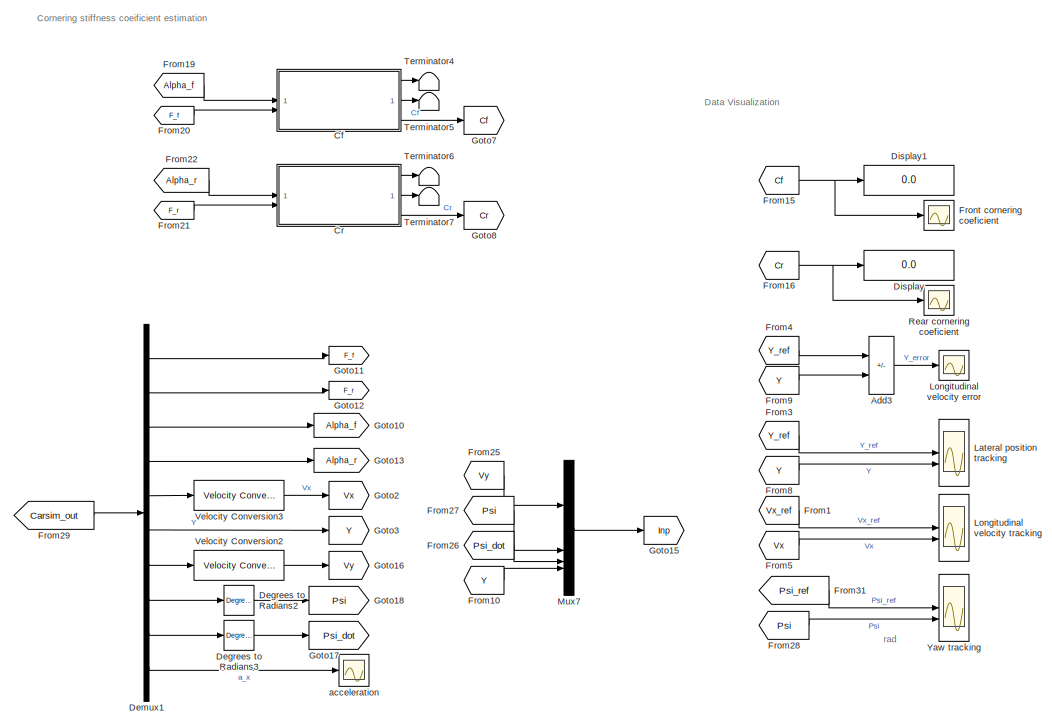
[diagram: root canvas - part 1/3, right side, full height]
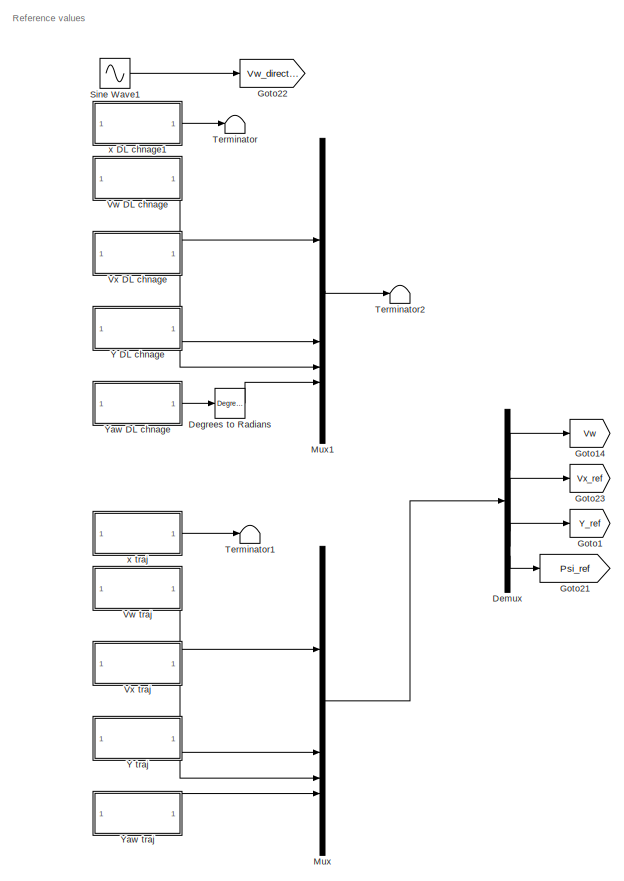
[diagram: root canvas - part 2/3, left side, full height]
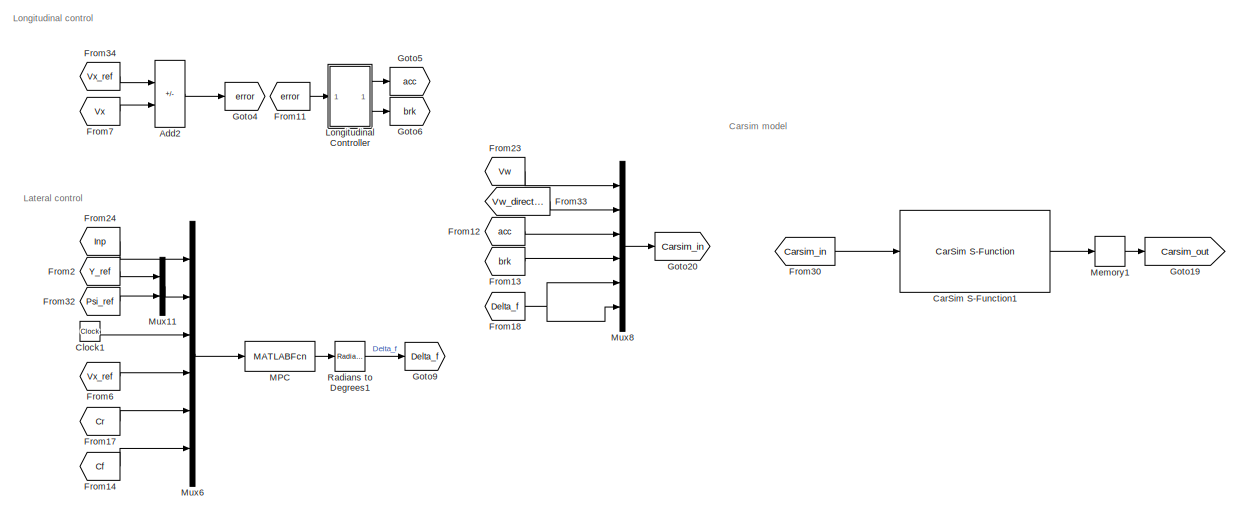
[diagram: root canvas - part 3/3, central region]
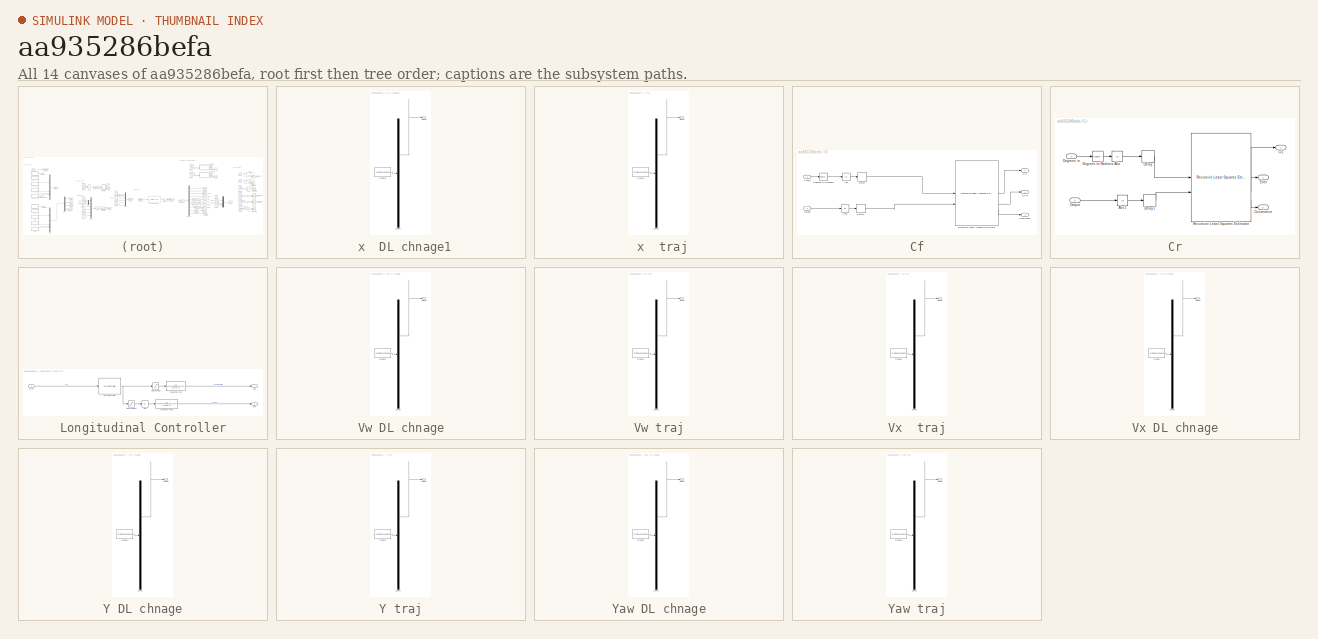
[diagram: thumbnail index - all 14 canvases of the model, root first then tree order]
MODEL slx_aa935286befa
KIND model
CONFIG AbsTol = 1e-6
CONFIG EnableMultiTasking = off
CONFIG FixedStep = 0.001
CONFIG MaxStep = auto
CONFIG MinStep = auto
CONFIG RelTol = 1e-3
CONFIG SampleTimeConstraint = Unconstrained
CONFIG SolverName = VariableStepAuto
CONFIG StartTime = 0
CONFIG StopTime = 84
BLOCK [SubSystem]  x  DL chnage1
  ClipboardFcn = sigbuilder_block('clipboard');
  CloseFcn = sigbuilder_block('close');
  Commented = on
  ContinueFcn = sigbuilder_block('continue');
  CopyFcn = sigbuilder_block('copy');
  DeleteFcn = sigbuilder_block('delete');
  LoadFcn = sigbuilder_block('load');
  MaskHideContents = on
  ModelCloseFcn = sigbuilder_block('modelClose');
  NameChangeFcn = sigbuilder_block('namechange');
  OpenFcn = sigbuilder_block('open',[474 22.5 1440 689.25 ]);
  PauseFcn = sigbuilder_block('pause');
  PreSaveFcn = sigbuilder_block('preSave');
  StartFcn = sigbuilder_block('start');
  StopFcn = sigbuilder_block('stop');
  Tag = STV Subsys
BLOCK [Demux]  x  DL chnage1/Demux
  DisplayOption = none
  Outputs = 1
  Tag = STV Demux
BLOCK [FromWorkspace]  x  DL chnage1/FromWs
  Tag = STV FromWs
  VariableName = tuvar
BLOCK [Outport]  x  DL chnage1/Signal 1
  Tag = STV Outport
BLOCK [SubSystem]  x  traj
  ClipboardFcn = sigbuilder_block('clipboard');
  CloseFcn = sigbuilder_block('close');
  Commented = on
  ContinueFcn = sigbuilder_block('continue');
  CopyFcn = sigbuilder_block('copy');
  DeleteFcn = sigbuilder_block('delete');
  LoadFcn = sigbuilder_block('load');
  MaskHideContents = on
  ModelCloseFcn = sigbuilder_block('modelClose');
  NameChangeFcn = sigbuilder_block('namechange');
  OpenFcn = sigbuilder_block('open',[65.25 51.75 1440 651.75 ]);
  PauseFcn = sigbuilder_block('pause');
  PreSaveFcn = sigbuilder_block('preSave');
  StartFcn = sigbuilder_block('start');
  StopFcn = sigbuilder_block('stop');
  Tag = STV Subsys
BLOCK [Demux]  x  traj/Demux
  DisplayOption = none
  Outputs = 1
  Tag = STV Demux
BLOCK [FromWorkspace]  x  traj/FromWs
  Tag = STV FromWs
  VariableName = tuvar
BLOCK [Outport]  x  traj/Signal 1
  Tag = STV Outport
BLOCK [Sum] Add2
  IconShape = rectangular
  Inputs = +-
BLOCK [Sum] Add3
  IconShape = rectangular
  Inputs = +-
BLOCK [Reference] CarSim S-Function1  REF=Solver_SF/CarSim S-Function
  AttributesFormatString = Vehicle Code: %<VehicleCode>
  Priority = 1
  SourceBlock = Solver_SF/CarSim S-Function
  SourceProductName = CarSim S-Function
  SourceType = Vehicle math model library
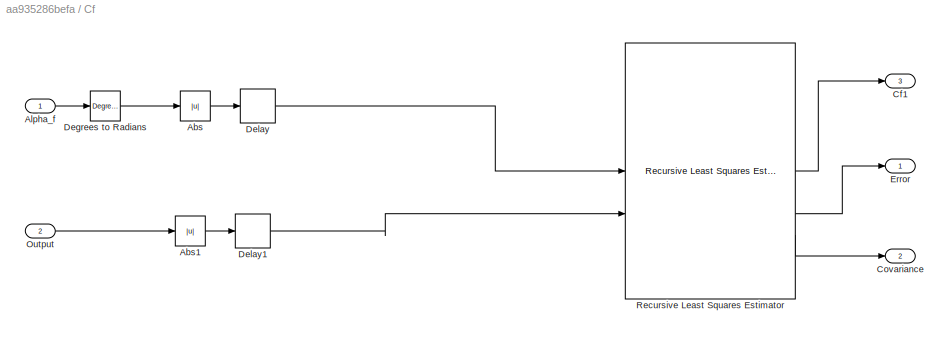
BLOCK [SubSystem] Cf
BLOCK [Abs] Cf/Abs
  SaturateOnIntegerOverflow = off
BLOCK [Abs] Cf/Abs1
  SaturateOnIntegerOverflow = off
BLOCK [Inport] Cf/Alpha_f
BLOCK [Outport] Cf/Cf1
  Port = 3
BLOCK [Outport] Cf/Covariance
  Port = 2
BLOCK [Reference] Cf/Degrees to Radians  REF=simulink_extras/Transformations/Degrees to
Radians
  SourceBlock = simulink_extras/Transformations/Degrees to\nRadians
  SourceType = DegreesToRadians
BLOCK [Delay] Cf/Delay
  DelayLength = 1
  InputPortMap = u0
BLOCK [Delay] Cf/Delay1
  DelayLength = 1
  InputPortMap = u0
BLOCK [Outport] Cf/Error
BLOCK [Inport] Cf/Output
  Port = 2
BLOCK [Reference] Cf/Recursive Least Squares Estimator  REF=ctrlSharedLib/Recursive Least Squares Estimator
  SourceBlock = ctrlSharedLib/Recursive Least Squares Estimator
  SourceType = idEstimatorsRLS
BLOCK [Clock] Clock1
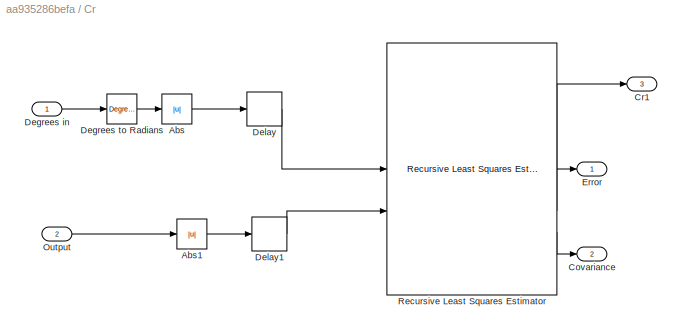
BLOCK [SubSystem] Cr
BLOCK [Abs] Cr/Abs
  SaturateOnIntegerOverflow = off
BLOCK [Abs] Cr/Abs1
  SaturateOnIntegerOverflow = off
BLOCK [Outport] Cr/Covariance
  Port = 2
BLOCK [Outport] Cr/Cr1
  Port = 3
BLOCK [Inport] Cr/Degrees in
BLOCK [Reference] Cr/Degrees to Radians  REF=simulink_extras/Transformations/Degrees to
Radians
  SourceBlock = simulink_extras/Transformations/Degrees to\nRadians
  SourceType = DegreesToRadians
BLOCK [Delay] Cr/Delay
  DelayLength = 1
  InputPortMap = u0
BLOCK [Delay] Cr/Delay1
  DelayLength = 1
  InputPortMap = u0
BLOCK [Outport] Cr/Error
BLOCK [Inport] Cr/Output
  Port = 2
BLOCK [Reference] Cr/Recursive Least Squares Estimator  REF=ctrlSharedLib/Recursive Least Squares Estimator
  SourceBlock = ctrlSharedLib/Recursive Least Squares Estimator
  SourceType = idEstimatorsRLS
BLOCK [Reference] Degrees to Radians  REF=simulink_extras/Transformations/Degrees to
Radians
  Commented = on
  SourceBlock = simulink_extras/Transformations/Degrees to\nRadians
  SourceType = DegreesToRadians
BLOCK [Reference] Degrees to Radians2  REF=simulink_extras/Transformations/Degrees to
Radians
  SourceBlock = simulink_extras/Transformations/Degrees to\nRadians
  SourceType = DegreesToRadians
BLOCK [Reference] Degrees to Radians3  REF=simulink_extras/Transformations/Degrees to
Radians
  SourceBlock = simulink_extras/Transformations/Degrees to\nRadians
  SourceType = DegreesToRadians
BLOCK [Demux] Demux
BLOCK [Demux] Demux1
  Outputs = 10
BLOCK [Display] Display
  Decimation = 1
BLOCK [Display] Display1
  Decimation = 1
BLOCK [From] From1
  GotoTag = Vx_ref
BLOCK [From] From10
  GotoTag = Y
BLOCK [From] From11
  GotoTag = error
BLOCK [From] From12
  GotoTag = acc
BLOCK [From] From13
  GotoTag = brk
BLOCK [From] From14
  GotoTag = Cf
BLOCK [From] From15
  CopyFcn = Lib_CopyFcn(gcb);
  Description = FromInternal
  GotoTag = Cf
  PreDeleteFcn = Lib_PreDeleteFcn(gcb);
  Tag = Controls_Lib
  UserDataPersistent = on
BLOCK [From] From16
  GotoTag = Cr
BLOCK [From] From17
  GotoTag = Cr
BLOCK [From] From18
  GotoTag = Delta_f
BLOCK [From] From19
  GotoTag = Alpha_f
BLOCK [From] From2
  GotoTag = Y_ref
BLOCK [From] From20
  GotoTag = F_f
BLOCK [From] From21
  CopyFcn = Lib_CopyFcn(gcb);
  Description = FromInternal
  GotoTag = F_r
  PreDeleteFcn = Lib_PreDeleteFcn(gcb);
  Tag = Controls_Lib
  UserDataPersistent = on
BLOCK [From] From22
  CopyFcn = Lib_CopyFcn(gcb);
  Description = FromInternal
  GotoTag = Alpha_r
  PreDeleteFcn = Lib_PreDeleteFcn(gcb);
  Tag = Controls_Lib
  UserDataPersistent = on
BLOCK [From] From23
  GotoTag = Vw
BLOCK [From] From24
  GotoTag = Inp
BLOCK [From] From25
  CopyFcn = Lib_CopyFcn(gcb);
  Description = FromInternal
  GotoTag = Vy
  PreDeleteFcn = Lib_PreDeleteFcn(gcb);
  Tag = Controls_Lib
  UserDataPersistent = on
BLOCK [From] From26
  GotoTag = Psi_dot
BLOCK [From] From27
  GotoTag = Psi
BLOCK [From] From28
  GotoTag = Psi
BLOCK [From] From29
  GotoTag = Carsim_out
BLOCK [From] From3
  GotoTag = Y_ref
BLOCK [From] From30
  GotoTag = Carsim_in
BLOCK [From] From31
  GotoTag = Psi_ref
BLOCK [From] From32
  GotoTag = Psi_ref
BLOCK [From] From33
  GotoTag = Vw_direction
BLOCK [From] From34
  GotoTag = Vx_ref
BLOCK [From] From4
  GotoTag = Y_ref
BLOCK [From] From5
  GotoTag = Vx
BLOCK [From] From6
  GotoTag = Vx_ref
BLOCK [From] From7
  GotoTag = Vx
BLOCK [From] From8
  GotoTag = Y
BLOCK [From] From9
  GotoTag = Y
BLOCK [Scope] Front cornering coeficient
  Floating = off
  NameLocation = right
  NumInputPorts = 1
  ScopeSpecificationString = Simulink.scopes.TimeScopeBlockCfg('CurrentConfiguration', extmgr.ConfigurationSet(extmgr.Configuration('Core','General UI',true),extmgr.Configuration('Core','Source UI',true),extmgr.Configuration('Sources','WiredSimulink',true,'DataLoggingSaveFormat','Array','DataLoggingDecimation','10','DataLoggingDecimateData',true,'DataLoggingVariableName','ScopeData1'),extmgr.Configuration('Visuals','Time Doma...<+1821ch>
BLOCK [Goto] Goto1
  CopyFcn = Lib_CopyFcn(gcb);
  Description = GotoInternal
  GotoTag = Y_ref
  PreDeleteFcn = Lib_PreDeleteFcn(gcb);
  Tag = Controls_Lib
  UserDataPersistent = on
BLOCK [Goto] Goto10
  CopyFcn = Lib_CopyFcn(gcb);
  Description = GotoInternal
  GotoTag = Alpha_f
  PreDeleteFcn = Lib_PreDeleteFcn(gcb);
  Tag = Controls_Lib
  UserDataPersistent = on
BLOCK [Goto] Goto11
  CopyFcn = Lib_CopyFcn(gcb);
  Description = GotoInternal
  GotoTag = F_f
  PreDeleteFcn = Lib_PreDeleteFcn(gcb);
  Tag = Controls_Lib
  UserDataPersistent = on
BLOCK [Goto] Goto12
  CopyFcn = Lib_CopyFcn(gcb);
  Description = GotoInternal
  GotoTag = F_r
  PreDeleteFcn = Lib_PreDeleteFcn(gcb);
  Tag = Controls_Lib
  UserDataPersistent = on
BLOCK [Goto] Goto13
  CopyFcn = Lib_CopyFcn(gcb);
  Description = GotoInternal
  GotoTag = Alpha_r
  PreDeleteFcn = Lib_PreDeleteFcn(gcb);
  Tag = Controls_Lib
  UserDataPersistent = on
BLOCK [Goto] Goto14
  CopyFcn = Lib_CopyFcn(gcb);
  Description = GotoInternal
  GotoTag = Vw
  PreDeleteFcn = Lib_PreDeleteFcn(gcb);
  Tag = Controls_Lib
  UserDataPersistent = on
BLOCK [Goto] Goto15
  CopyFcn = Lib_CopyFcn(gcb);
  Description = GotoInternal
  GotoTag = Inp
  PreDeleteFcn = Lib_PreDeleteFcn(gcb);
  Tag = Controls_Lib
  UserDataPersistent = on
BLOCK [Goto] Goto16
  CopyFcn = Lib_CopyFcn(gcb);
  Description = GotoInternal
  GotoTag = Vy
  PreDeleteFcn = Lib_PreDeleteFcn(gcb);
  Tag = Controls_Lib
  UserDataPersistent = on
BLOCK [Goto] Goto17
  CopyFcn = Lib_CopyFcn(gcb);
  Description = GotoInternal
  GotoTag = Psi_dot
  PreDeleteFcn = Lib_PreDeleteFcn(gcb);
  Tag = Controls_Lib
  UserDataPersistent = on
BLOCK [Goto] Goto18
  CopyFcn = Lib_CopyFcn(gcb);
  Description = GotoInternal
  GotoTag = Psi
  PreDeleteFcn = Lib_PreDeleteFcn(gcb);
  Tag = Controls_Lib
  UserDataPersistent = on
BLOCK [Goto] Goto19
  CopyFcn = Lib_CopyFcn(gcb);
  Description = GotoInternal
  GotoTag = Carsim_out
  PreDeleteFcn = Lib_PreDeleteFcn(gcb);
  Tag = Controls_Lib
  UserDataPersistent = on
BLOCK [Goto] Goto2
  CopyFcn = Lib_CopyFcn(gcb);
  Description = GotoInternal
  GotoTag = Vx
  PreDeleteFcn = Lib_PreDeleteFcn(gcb);
  Tag = Controls_Lib
  UserDataPersistent = on
BLOCK [Goto] Goto20
  CopyFcn = Lib_CopyFcn(gcb);
  Description = GotoInternal
  GotoTag = Carsim_in
  PreDeleteFcn = Lib_PreDeleteFcn(gcb);
  Tag = Controls_Lib
  UserDataPersistent = on
BLOCK [Goto] Goto21
  CopyFcn = Lib_CopyFcn(gcb);
  Description = GotoInternal
  GotoTag = Psi_ref
  PreDeleteFcn = Lib_PreDeleteFcn(gcb);
  Tag = Controls_Lib
  UserDataPersistent = on
BLOCK [Goto] Goto22
  CopyFcn = Lib_CopyFcn(gcb);
  Description = GotoInternal
  GotoTag = Vw_direction
  PreDeleteFcn = Lib_PreDeleteFcn(gcb);
  Tag = Controls_Lib
  UserDataPersistent = on
BLOCK [Goto] Goto23
  CopyFcn = Lib_CopyFcn(gcb);
  Description = GotoInternal
  GotoTag = Vx_ref
  PreDeleteFcn = Lib_PreDeleteFcn(gcb);
  Tag = Controls_Lib
  UserDataPersistent = on
BLOCK [Goto] Goto3
  CopyFcn = Lib_CopyFcn(gcb);
  Description = GotoInternal
  GotoTag = Y
  PreDeleteFcn = Lib_PreDeleteFcn(gcb);
  Tag = Controls_Lib
  UserDataPersistent = on
BLOCK [Goto] Goto4
  CopyFcn = Lib_CopyFcn(gcb);
  Description = GotoInternal
  GotoTag = error
  PreDeleteFcn = Lib_PreDeleteFcn(gcb);
  Tag = Controls_Lib
  UserDataPersistent = on
BLOCK [Goto] Goto5
  CopyFcn = Lib_CopyFcn(gcb);
  Description = GotoInternal
  GotoTag = acc
  PreDeleteFcn = Lib_PreDeleteFcn(gcb);
  Tag = Controls_Lib
  UserDataPersistent = on
BLOCK [Goto] Goto6
  CopyFcn = Lib_CopyFcn(gcb);
  Description = GotoInternal
  GotoTag = brk
  PreDeleteFcn = Lib_PreDeleteFcn(gcb);
  Tag = Controls_Lib
  UserDataPersistent = on
BLOCK [Goto] Goto7
  CopyFcn = Lib_CopyFcn(gcb);
  Description = GotoInternal
  GotoTag = Cf
  PreDeleteFcn = Lib_PreDeleteFcn(gcb);
  Tag = Controls_Lib
  UserDataPersistent = on
BLOCK [Goto] Goto8
  CopyFcn = Lib_CopyFcn(gcb);
  Description = GotoInternal
  GotoTag = Cr
  PreDeleteFcn = Lib_PreDeleteFcn(gcb);
  Tag = Controls_Lib
  UserDataPersistent = on
BLOCK [Goto] Goto9
  CopyFcn = Lib_CopyFcn(gcb);
  Description = GotoInternal
  GotoTag = Delta_f
  PreDeleteFcn = Lib_PreDeleteFcn(gcb);
  Tag = Controls_Lib
  UserDataPersistent = on
BLOCK [Scope] Lateral position tracking
  Floating = off
  NameLocation = right
  NumInputPorts = 2
  ScopeSpecificationString = Simulink.scopes.TimeScopeBlockCfg('CurrentConfiguration', extmgr.ConfigurationSet(extmgr.Configuration('Core','General UI',true),extmgr.Configuration('Core','Source UI',true),extmgr.Configuration('Sources','WiredSimulink',true,'DataLoggingSaveFormat','Array','DataLoggingDecimation','10','DataLoggingDecimateData',true,'DataLoggingVariableName','ScopeData2'),extmgr.Configuration('Visuals','Time Doma...<+1825ch>
BLOCK [SubSystem] Longitudinal Controller
BLOCK [Abs] Longitudinal Controller/Abs
  SaturateOnIntegerOverflow = off
BLOCK [Reference] Longitudinal Controller/PID Controller  REF=slpidlib/PID Controller
  SourceBlock = slpidlib/PID Controller
  SourceType = PID 1dof
BLOCK [Saturate] Longitudinal Controller/Saturation
  LowerLimit = 0
  UpperLimit = 1
BLOCK [Saturate] Longitudinal Controller/Saturation1
  LowerLimit = -5
  UpperLimit = 0
BLOCK [TransferFcn] Longitudinal Controller/Transfer Fcn
  Denominator = [0.75 1]
BLOCK [TransferFcn] Longitudinal Controller/Transfer Fcn1
  Denominator = [0.45 1]
BLOCK [Outport] Longitudinal Controller/acc
BLOCK [Outport] Longitudinal Controller/brk
  Port = 2
BLOCK [Inport] Longitudinal Controller/error
BLOCK [Scope] Longitudinal velocity error
  Floating = off
  NameLocation = right
  NumInputPorts = 1
  ScopeSpecificationString = Simulink.scopes.TimeScopeBlockCfg('CurrentConfiguration', extmgr.ConfigurationSet(extmgr.Configuration('Core','General UI',true),extmgr.Configuration('Core','Source UI',true),extmgr.Configuration('Sources','WiredSimulink',true,'DataLoggingSaveFormat','Array','DataLoggingDecimation','10','DataLoggingDecimateData',true,'DataLoggingVariableName','ScopeData1'),extmgr.Configuration('Visuals','Time Doma...<+1821ch>
BLOCK [Scope] Longitudinal velocity tracking
  Floating = off
  NameLocation = right
  NumInputPorts = 2
  ScopeSpecificationString = Simulink.scopes.TimeScopeBlockCfg('CurrentConfiguration', extmgr.ConfigurationSet(extmgr.Configuration('Core','General UI',true),extmgr.Configuration('Core','Source UI',true),extmgr.Configuration('Sources','WiredSimulink',true,'DataLoggingSaveFormat','Array','DataLoggingDecimation','10','DataLoggingDecimateData',true,'DataLoggingVariableName','ScopeData4'),extmgr.Configuration('Visuals','Time Doma...<+1799ch>
BLOCK [MATLABFcn] MPC
  MATLABFcn = MPCController(u(1:4),u(5:6),u(7),u(8),u(9),u(10))
  SampleTime = 0.1
BLOCK [Memory] Memory1
BLOCK [Mux] Mux
  DisplayOption = bar
BLOCK [Mux] Mux1
  Commented = on
  DisplayOption = bar
BLOCK [Mux] Mux11
  DisplayOption = bar
  Inputs = 2
BLOCK [Mux] Mux6
  DisplayOption = bar
  Inputs = 6
BLOCK [Mux] Mux7
  DisplayOption = bar
BLOCK [Mux] Mux8
  DisplayOption = bar
  Inputs = 6
BLOCK [Reference] Radians to Degrees1  REF=simulink_extras/Transformations/Radians
to Degrees
  SourceBlock = simulink_extras/Transformations/Radians\nto Degrees
  SourceType = RadiansToDegrees
BLOCK [Scope] Rear cornering coeficient
  Floating = off
  NameLocation = right
  NumInputPorts = 1
  ScopeSpecificationString = Simulink.scopes.TimeScopeBlockCfg('CurrentConfiguration', extmgr.ConfigurationSet(extmgr.Configuration('Core','General UI',true),extmgr.Configuration('Core','Source UI',true),extmgr.Configuration('Sources','WiredSimulink',true,'DataLoggingSaveFormat','Array','DataLoggingDecimation','10','DataLoggingDecimateData',true,'DataLoggingVariableName','ScopeData2'),extmgr.Configuration('Visuals','Time Doma...<+1821ch>
BLOCK [Sin] Sine Wave1
  Amplitude = 90
  Frequency = 0.45
  SampleTime = 0
BLOCK [Terminator] Terminator
  Commented = on
BLOCK [Terminator] Terminator1
  Commented = on
BLOCK [Terminator] Terminator2
  Commented = on
BLOCK [Terminator] Terminator4
  CopyFcn = Lib_CopyFcn(gcb);
  Description = Terminator
  PreDeleteFcn = Lib_PreDeleteFcn(gcb);
  Tag = Controls_Lib
  UserDataPersistent = on
BLOCK [Terminator] Terminator5
  CopyFcn = Lib_CopyFcn(gcb);
  Description = Terminator
  PreDeleteFcn = Lib_PreDeleteFcn(gcb);
  Tag = Controls_Lib
  UserDataPersistent = on
BLOCK [Terminator] Terminator6
  CopyFcn = Lib_CopyFcn(gcb);
  Description = Terminator
  PreDeleteFcn = Lib_PreDeleteFcn(gcb);
  Tag = Controls_Lib
  UserDataPersistent = on
BLOCK [Terminator] Terminator7
  CopyFcn = Lib_CopyFcn(gcb);
  Description = Terminator
  PreDeleteFcn = Lib_PreDeleteFcn(gcb);
  Tag = Controls_Lib
  UserDataPersistent = on
BLOCK [Reference] Velocity Conversion2  REF=aerolibconvert2/Velocity Conversion
  SourceBlock = aerolibconvert2/Velocity Conversion
  SourceType = Velocity Conversion
BLOCK [Reference] Velocity Conversion3  REF=aerolibconvert2/Velocity Conversion
  SourceBlock = aerolibconvert2/Velocity Conversion
  SourceType = Velocity Conversion
BLOCK [SubSystem] Vw DL chnage
  ClipboardFcn = sigbuilder_block('clipboard');
  CloseFcn = sigbuilder_block('close');
  Commented = on
  ContinueFcn = sigbuilder_block('continue');
  CopyFcn = sigbuilder_block('copy');
  DeleteFcn = sigbuilder_block('delete');
  LoadFcn = sigbuilder_block('load');
  MaskHideContents = on
  ModelCloseFcn = sigbuilder_block('modelClose');
  NameChangeFcn = sigbuilder_block('namechange');
  OpenFcn = sigbuilder_block('open',[6 38.25 1428 648.75 ]);
  PauseFcn = sigbuilder_block('pause');
  PreSaveFcn = sigbuilder_block('preSave');
  StartFcn = sigbuilder_block('start');
  StopFcn = sigbuilder_block('stop');
  Tag = STV Subsys
BLOCK [Demux] Vw DL chnage/Demux
  DisplayOption = none
  Outputs = 1
  Tag = STV Demux
BLOCK [FromWorkspace] Vw DL chnage/FromWs
  Tag = STV FromWs
  VariableName = tuvar
BLOCK [Outport] Vw DL chnage/Signal 1
  Tag = STV Outport
BLOCK [SubSystem] Vw traj
  ClipboardFcn = sigbuilder_block('clipboard');
  CloseFcn = sigbuilder_block('close');
  ContinueFcn = sigbuilder_block('continue');
  CopyFcn = sigbuilder_block('copy');
  DeleteFcn = sigbuilder_block('delete');
  LoadFcn = sigbuilder_block('load');
  MaskHideContents = on
  ModelCloseFcn = sigbuilder_block('modelClose');
  NameChangeFcn = sigbuilder_block('namechange');
  OpenFcn = sigbuilder_block('open',[195.75 152.25 1428 689.25 ]);
  PauseFcn = sigbuilder_block('pause');
  PreSaveFcn = sigbuilder_block('preSave');
  StartFcn = sigbuilder_block('start');
  StopFcn = sigbuilder_block('stop');
  Tag = STV Subsys
BLOCK [Demux] Vw traj/Demux
  DisplayOption = none
  Outputs = 1
  Tag = STV Demux
BLOCK [FromWorkspace] Vw traj/FromWs
  Tag = STV FromWs
  VariableName = tuvar
BLOCK [Outport] Vw traj/Signal 1
  Tag = STV Outport
BLOCK [SubSystem] Vx  traj
  ClipboardFcn = sigbuilder_block('clipboard');
  CloseFcn = sigbuilder_block('close');
  ContinueFcn = sigbuilder_block('continue');
  CopyFcn = sigbuilder_block('copy');
  DeleteFcn = sigbuilder_block('delete');
  LoadFcn = sigbuilder_block('load');
  MaskHideContents = on
  ModelCloseFcn = sigbuilder_block('modelClose');
  NameChangeFcn = sigbuilder_block('namechange');
  OpenFcn = sigbuilder_block('open',[6 36 1908 945.75 ]);
  PauseFcn = sigbuilder_block('pause');
  PreSaveFcn = sigbuilder_block('preSave');
  StartFcn = sigbuilder_block('start');
  StopFcn = sigbuilder_block('stop');
  Tag = STV Subsys
BLOCK [Demux] Vx  traj/Demux
  DisplayOption = none
  Outputs = 1
  Tag = STV Demux
BLOCK [FromWorkspace] Vx  traj/FromWs
  Tag = STV FromWs
  VariableName = tuvar
BLOCK [Outport] Vx  traj/Signal 2
  Tag = STV Outport
BLOCK [SubSystem] Vx DL chnage
  ClipboardFcn = sigbuilder_block('clipboard');
  CloseFcn = sigbuilder_block('close');
  Commented = on
  ContinueFcn = sigbuilder_block('continue');
  CopyFcn = sigbuilder_block('copy');
  DeleteFcn = sigbuilder_block('delete');
  LoadFcn = sigbuilder_block('load');
  MaskHideContents = on
  ModelCloseFcn = sigbuilder_block('modelClose');
  NameChangeFcn = sigbuilder_block('namechange');
  OpenFcn = sigbuilder_block('open',[6 38.25 1428 648.75 ]);
  PauseFcn = sigbuilder_block('pause');
  PreSaveFcn = sigbuilder_block('preSave');
  StartFcn = sigbuilder_block('start');
  StopFcn = sigbuilder_block('stop');
  Tag = STV Subsys
BLOCK [Demux] Vx DL chnage/Demux
  DisplayOption = none
  Outputs = 1
  Tag = STV Demux
BLOCK [FromWorkspace] Vx DL chnage/FromWs
  Tag = STV FromWs
  VariableName = tuvar
BLOCK [Outport] Vx DL chnage/Signal 1
  Tag = STV Outport
BLOCK [SubSystem] Y DL chnage
  ClipboardFcn = sigbuilder_block('clipboard');
  CloseFcn = sigbuilder_block('close');
  Commented = on
  ContinueFcn = sigbuilder_block('continue');
  CopyFcn = sigbuilder_block('copy');
  DeleteFcn = sigbuilder_block('delete');
  LoadFcn = sigbuilder_block('load');
  MaskHideContents = on
  ModelCloseFcn = sigbuilder_block('modelClose');
  NameChangeFcn = sigbuilder_block('namechange');
  OpenFcn = sigbuilder_block('open',[6 22.5 1428 689.25 ]);
  PauseFcn = sigbuilder_block('pause');
  PreSaveFcn = sigbuilder_block('preSave');
  StartFcn = sigbuilder_block('start');
  StopFcn = sigbuilder_block('stop');
  Tag = STV Subsys
BLOCK [Demux] Y DL chnage/Demux
  DisplayOption = none
  Outputs = 1
  Tag = STV Demux
BLOCK [FromWorkspace] Y DL chnage/FromWs
  Tag = STV FromWs
  VariableName = tuvar
BLOCK [Outport] Y DL chnage/Signal 1
  Tag = STV Outport
BLOCK [SubSystem] Y traj
  ClipboardFcn = sigbuilder_block('clipboard');
  CloseFcn = sigbuilder_block('close');
  ContinueFcn = sigbuilder_block('continue');
  CopyFcn = sigbuilder_block('copy');
  DeleteFcn = sigbuilder_block('delete');
  LoadFcn = sigbuilder_block('load');
  MaskHideContents = on
  ModelCloseFcn = sigbuilder_block('modelClose');
  NameChangeFcn = sigbuilder_block('namechange');
  OpenFcn = sigbuilder_block('open',[126 246.5 1428 689.5 ]);
  PauseFcn = sigbuilder_block('pause');
  PreSaveFcn = sigbuilder_block('preSave');
  StartFcn = sigbuilder_block('start');
  StopFcn = sigbuilder_block('stop');
  Tag = STV Subsys
BLOCK [Demux] Y traj/Demux
  DisplayOption = none
  Outputs = 1
  Tag = STV Demux
BLOCK [FromWorkspace] Y traj/FromWs
  Tag = STV FromWs
  VariableName = tuvar
BLOCK [Outport] Y traj/Signal 1
  Tag = STV Outport
BLOCK [SubSystem] Yaw DL chnage
  ClipboardFcn = sigbuilder_block('clipboard');
  CloseFcn = sigbuilder_block('close');
  Commented = on
  ContinueFcn = sigbuilder_block('continue');
  CopyFcn = sigbuilder_block('copy');
  DeleteFcn = sigbuilder_block('delete');
  LoadFcn = sigbuilder_block('load');
  MaskHideContents = on
  ModelCloseFcn = sigbuilder_block('modelClose');
  NameChangeFcn = sigbuilder_block('namechange');
  OpenFcn = sigbuilder_block('open',[1344.75 109.5 1428 689.25 ]);
  PauseFcn = sigbuilder_block('pause');
  PreSaveFcn = sigbuilder_block('preSave');
  StartFcn = sigbuilder_block('start');
  StopFcn = sigbuilder_block('stop');
  Tag = STV Subsys
BLOCK [Demux] Yaw DL chnage/Demux
  DisplayOption = none
  Outputs = 1
  Tag = STV Demux
BLOCK [FromWorkspace] Yaw DL chnage/FromWs
  Tag = STV FromWs
  VariableName = tuvar
BLOCK [Outport] Yaw DL chnage/Signal 1
  Tag = STV Outport
BLOCK [Scope] Yaw tracking
  Floating = off
  NameLocation = right
  NumInputPorts = 2
  ScopeSpecificationString = Simulink.scopes.TimeScopeBlockCfg('CurrentConfiguration', extmgr.ConfigurationSet(extmgr.Configuration('Core','General UI',true),extmgr.Configuration('Core','Source UI',true),extmgr.Configuration('Sources','WiredSimulink',true,'DataLoggingSaveFormat','Array','DataLoggingDecimation','10','DataLoggingDecimateData',true,'DataLoggingVariableName','ScopeData5'),extmgr.Configuration('Visuals','Time Doma...<+1823ch>
BLOCK [SubSystem] Yaw traj
  ClipboardFcn = sigbuilder_block('clipboard');
  CloseFcn = sigbuilder_block('close');
  ContinueFcn = sigbuilder_block('continue');
  CopyFcn = sigbuilder_block('copy');
  DeleteFcn = sigbuilder_block('delete');
  LoadFcn = sigbuilder_block('load');
  MaskHideContents = on
  ModelCloseFcn = sigbuilder_block('modelClose');
  NameChangeFcn = sigbuilder_block('namechange');
  OpenFcn = sigbuilder_block('open',[6 36 1908 945.75 ]);
  PauseFcn = sigbuilder_block('pause');
  PreSaveFcn = sigbuilder_block('preSave');
  StartFcn = sigbuilder_block('start');
  StopFcn = sigbuilder_block('stop');
  Tag = STV Subsys
BLOCK [Demux] Yaw traj/Demux
  DisplayOption = none
  Outputs = 1
  Tag = STV Demux
BLOCK [FromWorkspace] Yaw traj/FromWs
  Tag = STV FromWs
  VariableName = tuvar
BLOCK [Outport] Yaw traj/Signal 1
  Tag = STV Outport
BLOCK [Scope] acceleration
  Floating = off
  NumInputPorts = 1
  ScopeSpecificationString = Simulink.scopes.TimeScopeBlockCfg('CurrentConfiguration', extmgr.ConfigurationSet(extmgr.Configuration('Core','General UI',true),extmgr.Configuration('Core','Source UI',true),extmgr.Configuration('Sources','WiredSimulink',true,'DataLoggingVariableName','ScopeData1'),extmgr.Configuration('Visuals','Time Domain',true,'SerializedDisplays',{struct('MinYLimReal','-0.33922','MaxYLimReal','0.64611','YLab...<+1505ch>
ANNOTATION (root): Carsim model
ANNOTATION (root): Cornering stiffness coeificient estimation
ANNOTATION (root): Data Visualization
ANNOTATION (root): Lateral control
ANNOTATION (root): Longitudinal control
ANNOTATION (root): Reference values
ANNOTATION (root): rad
LINE  x  DL chnage1:1 -> Terminator:1
LINE  x  traj:1 -> Terminator1:1
LINE Add2:1 -> Goto4:1
LINE Add3:1 -> Longitudinal velocity error:1
LINE CarSim S-Function1:1 -> Memory1:1
LINE Cf/Abs1:1 -> Cf/Delay1:1
LINE Cf/Abs:1 -> Cf/Delay:1
LINE Cf/Alpha_f:1 -> Cf/Degrees to Radians:1
LINE Cf/Degrees to Radians:1 -> Cf/Abs:1
LINE Cf/Delay1:1 -> Cf/Recursive Least Squares Estimator:2
LINE Cf/Delay:1 -> Cf/Recursive Least Squares Estimator:1
LINE Cf/Output:1 -> Cf/Abs1:1
LINE Cf/Recursive Least Squares Estimator:1 -> Cf/Cf1:1
LINE Cf/Recursive Least Squares Estimator:2 -> Cf/Error:1
LINE Cf/Recursive Least Squares Estimator:3 -> Cf/Covariance:1
LINE Cf:1 -> Terminator4:1
LINE Cf:2 -> Terminator5:1
LINE Cf:3 -> Goto7:1
LINE Clock1:1 -> Mux6:3
LINE Cr/Abs1:1 -> Cr/Delay1:1
LINE Cr/Abs:1 -> Cr/Delay:1
LINE Cr/Degrees in:1 -> Cr/Degrees to Radians:1
LINE Cr/Degrees to Radians:1 -> Cr/Abs:1
LINE Cr/Delay1:1 -> Cr/Recursive Least Squares Estimator:2
LINE Cr/Delay:1 -> Cr/Recursive Least Squares Estimator:1
LINE Cr/Output:1 -> Cr/Abs1:1
LINE Cr/Recursive Least Squares Estimator:1 -> Cr/Cr1:1
LINE Cr/Recursive Least Squares Estimator:2 -> Cr/Error:1
LINE Cr/Recursive Least Squares Estimator:3 -> Cr/Covariance:1
LINE Cr:1 -> Terminator6:1
LINE Cr:2 -> Terminator7:1
LINE Cr:3 -> Goto8:1
LINE Degrees to Radians2:1 -> Goto18:1
LINE Degrees to Radians3:1 -> Goto17:1
LINE Degrees to Radians:1 -> Mux1:4
LINE Demux1:1 -> Goto11:1
LINE Demux1:10 -> acceleration:1
LINE Demux1:2 -> Goto12:1
LINE Demux1:3 -> Goto10:1
LINE Demux1:4 -> Goto13:1
LINE Demux1:5 -> Velocity Conversion3:1
LINE Demux1:6 -> Goto3:1
LINE Demux1:7 -> Velocity Conversion2:1
LINE Demux1:8 -> Degrees to Radians2:1
LINE Demux1:9 -> Degrees to Radians3:1
LINE Demux:1 -> Goto14:1
LINE Demux:2 -> Goto23:1
LINE Demux:3 -> Goto1:1
LINE Demux:4 -> Goto21:1
LINE From10:1 -> Mux7:4
LINE From11:1 -> Longitudinal Controller:1
LINE From12:1 -> Mux8:3
LINE From13:1 -> Mux8:4
LINE From14:1 -> Mux6:6
NET From15:1 -> Display1:1, Front cornering coeficient:1
NET From16:1 -> Display:1, Rear cornering coeficient:1
LINE From17:1 -> Mux6:5
NET From18:1 -> Mux8:5, Mux8:6
LINE From19:1 -> Cf:1
LINE From1:1 -> Longitudinal velocity tracking:1
LINE From20:1 -> Cf:2
LINE From21:1 -> Cr:2
LINE From22:1 -> Cr:1
LINE From23:1 -> Mux8:1
LINE From24:1 -> Mux6:1
LINE From25:1 -> Mux7:1
LINE From26:1 -> Mux7:3
LINE From27:1 -> Mux7:2
LINE From28:1 -> Yaw tracking:2
LINE From29:1 -> Demux1:1
LINE From2:1 -> Mux11:1
LINE From30:1 -> CarSim S-Function1:1
LINE From31:1 -> Yaw tracking:1
LINE From32:1 -> Mux11:2
LINE From33:1 -> Mux8:2
LINE From34:1 -> Add2:1
LINE From3:1 -> Lateral position tracking:1
LINE From4:1 -> Add3:1
LINE From5:1 -> Longitudinal velocity tracking:2
LINE From6:1 -> Mux6:4
LINE From7:1 -> Add2:2
LINE From8:1 -> Lateral position tracking:2
LINE From9:1 -> Add3:2
LINE Longitudinal Controller/Abs:1 -> Longitudinal Controller/Transfer Fcn1:1
NET Longitudinal Controller/PID Controller:1 -> Longitudinal Controller/Saturation1:1, Longitudinal Controller/Saturation:1
LINE Longitudinal Controller/Saturation1:1 -> Longitudinal Controller/Abs:1
LINE Longitudinal Controller/Saturation:1 -> Longitudinal Controller/Transfer Fcn:1
LINE Longitudinal Controller/Transfer Fcn1:1 -> Longitudinal Controller/brk:1
LINE Longitudinal Controller/Transfer Fcn:1 -> Longitudinal Controller/acc:1
LINE Longitudinal Controller/error:1 -> Longitudinal Controller/PID Controller:1
LINE Longitudinal Controller:1 -> Goto5:1
LINE Longitudinal Controller:2 -> Goto6:1
LINE MPC:1 -> Radians to Degrees1:1
LINE Memory1:1 -> Goto19:1
LINE Mux11:1 -> Mux6:2
LINE Mux1:1 -> Terminator2:1
LINE Mux6:1 -> MPC:1
LINE Mux7:1 -> Goto15:1
LINE Mux8:1 -> Goto20:1
LINE Mux:1 -> Demux:1
LINE Radians to Degrees1:1 -> Goto9:1
LINE Sine Wave1:1 -> Goto22:1
LINE Velocity Conversion2:1 -> Goto16:1
LINE Velocity Conversion3:1 -> Goto2:1
LINE Vw DL chnage:1 -> Mux1:1
LINE Vw traj:1 -> Mux:1
LINE Vx  traj:1 -> Mux:2
LINE Vx DL chnage:1 -> Mux1:2
LINE Y DL chnage:1 -> Mux1:3
LINE Y traj:1 -> Mux:3
LINE Yaw DL chnage:1 -> Degrees to Radians:1
LINE Yaw traj:1 -> Mux:4
note: NET lines group one-source signal fan-out (src -> all destinations, sorted); 1:1 wires keep LINE
